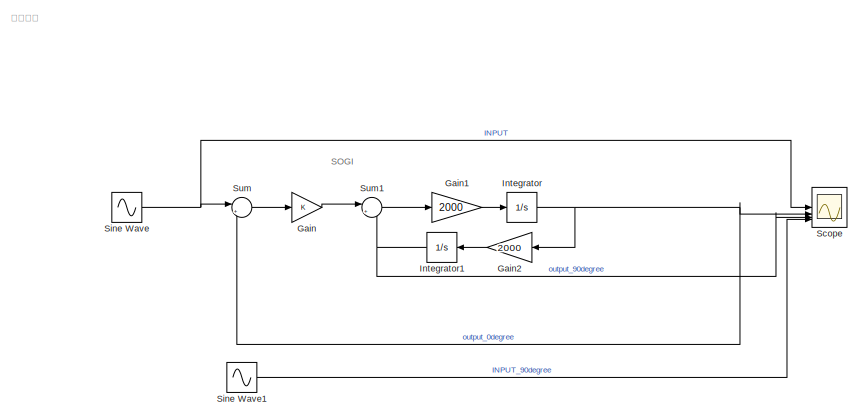
[diagram: root canvas - part 1/2, left side, full height]
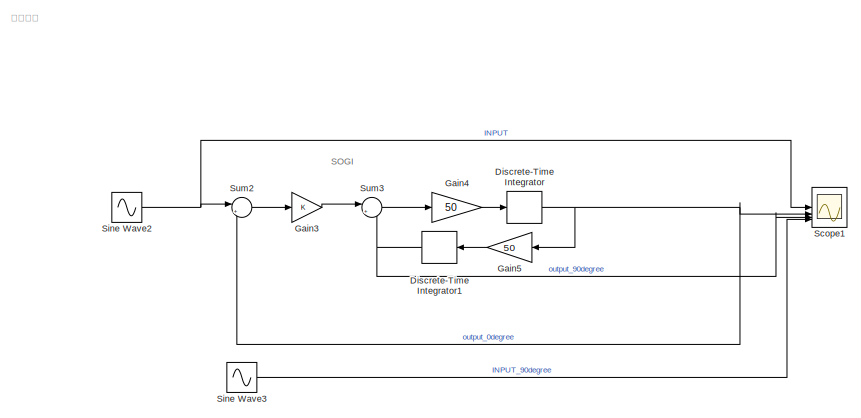
[diagram: root canvas - part 2/2, right side, full height]
MODEL slx_d9b239226567
KIND model
CONFIG AbsTol = auto
CONFIG EnableMultiTasking = off
CONFIG FixedStep = auto
CONFIG MaxStep = 1e-7
CONFIG MinStep = auto
CONFIG RelTol = 1e-5
CONFIG SampleTimeConstraint = Unconstrained
CONFIG SolverName = VariableStepAuto
CONFIG StartTime = 0.0
CONFIG StopTime = 1
BLOCK [DiscreteIntegrator] Discrete-Time Integrator
  ICPrevOutput = DiscIntNeverNeededParam
  ICPrevScaledInput = DiscIntNeverNeededParam
  InitialConditionSetting = Auto
  SampleTime = 1e-4
BLOCK [DiscreteIntegrator] Discrete-Time Integrator1
  ICPrevOutput = DiscIntNeverNeededParam
  ICPrevScaledInput = DiscIntNeverNeededParam
  InitialConditionSetting = Auto
  NameLocation = top
  SampleTime = 1e-4
BLOCK [Gain] Gain
  Commented = on
BLOCK [Gain] Gain1
  Commented = on
  Gain = 2000
BLOCK [Gain] Gain2
  Commented = on
  Gain = 2000
  NameLocation = top
BLOCK [Gain] Gain3
BLOCK [Gain] Gain4
  Gain = 50
BLOCK [Gain] Gain5
  Gain = 50
  NameLocation = top
BLOCK [Integrator] Integrator
  Commented = on
BLOCK [Integrator] Integrator1
  Commented = on
  NameLocation = top
BLOCK [Scope] Scope
  Commented = on
  Floating = off
  NumInputPorts = 4
  ScopeSpecificationString = Simulink.scopes.TimeScopeBlockCfg('CurrentConfiguration', extmgr.ConfigurationSet(extmgr.Configuration('Core','General UI',true,'FigureColor',[1 1 1]),extmgr.Configuration('Core','Source UI',true),extmgr.Configuration('Sources','WiredSimulink',true),extmgr.Configuration('Visuals','Time Domain',true,'SerializedDisplays',{struct('MinYLimReal','-1.01049','MaxYLimReal','1.01158','YLabelReal','','MinYL...<+1737ch>
BLOCK [Scope] Scope1
  Floating = off
  NumInputPorts = 4
  ScopeSpecificationString = Simulink.scopes.TimeScopeBlockCfg('CurrentConfiguration', extmgr.ConfigurationSet(extmgr.Configuration('Core','General UI',true,'FigureColor',[1 1 1]),extmgr.Configuration('Core','Source UI',true),extmgr.Configuration('Sources','WiredSimulink',true,'DataLoggingVariableName','ScopeData1'),extmgr.Configuration('Visuals','Time Domain',true,'SerializedDisplays',{struct('MinYLimReal','-1.25795','MaxYLi...<+1777ch>
BLOCK [Sin] Sine Wave
  Commented = on
  Frequency = 2000
  SampleTime = 0
BLOCK [Sin] Sine Wave1
  Commented = on
  Frequency = 2000
  Phase = -pi/2
  SampleTime = 0
BLOCK [Sin] Sine Wave2
  Frequency = 50
  SampleTime = 1e-4
BLOCK [Sin] Sine Wave3
  Frequency = 50
  Phase = -pi/2
  SampleTime = 1e-4
BLOCK [Sum] Sum
  Commented = on
  Inputs = |+-
BLOCK [Sum] Sum1
  Commented = on
  Inputs = |+-
BLOCK [Sum] Sum2
  Inputs = |+-
BLOCK [Sum] Sum3
  Inputs = |+-
ANNOTATION (root): SOGI
ANNOTATION (root): 离散系统
ANNOTATION (root): 连续系统
NET Discrete-Time Integrator1:1 -> Scope1:3, Sum3:2
NET Discrete-Time Integrator:1 -> Gain5:1, Scope1:2, Sum2:2
LINE Gain1:1 -> Integrator:1
LINE Gain2:1 -> Integrator1:1
LINE Gain3:1 -> Sum3:1
LINE Gain4:1 -> Discrete-Time Integrator:1
LINE Gain5:1 -> Discrete-Time Integrator1:1
LINE Gain:1 -> Sum1:1
NET Integrator1:1 -> Scope:3, Sum1:2
NET Integrator:1 -> Gain2:1, Scope:2, Sum:2
LINE Sine Wave1:1 -> Scope:4
NET Sine Wave2:1 -> Scope1:1, Sum2:1
LINE Sine Wave3:1 -> Scope1:4
NET Sine Wave:1 -> Scope:1, Sum:1
LINE Sum1:1 -> Gain1:1
LINE Sum2:1 -> Gain3:1
LINE Sum3:1 -> Gain4:1
LINE Sum:1 -> Gain:1
note: NET lines group one-source signal fan-out (src -> all destinations, sorted); 1:1 wires keep LINE
